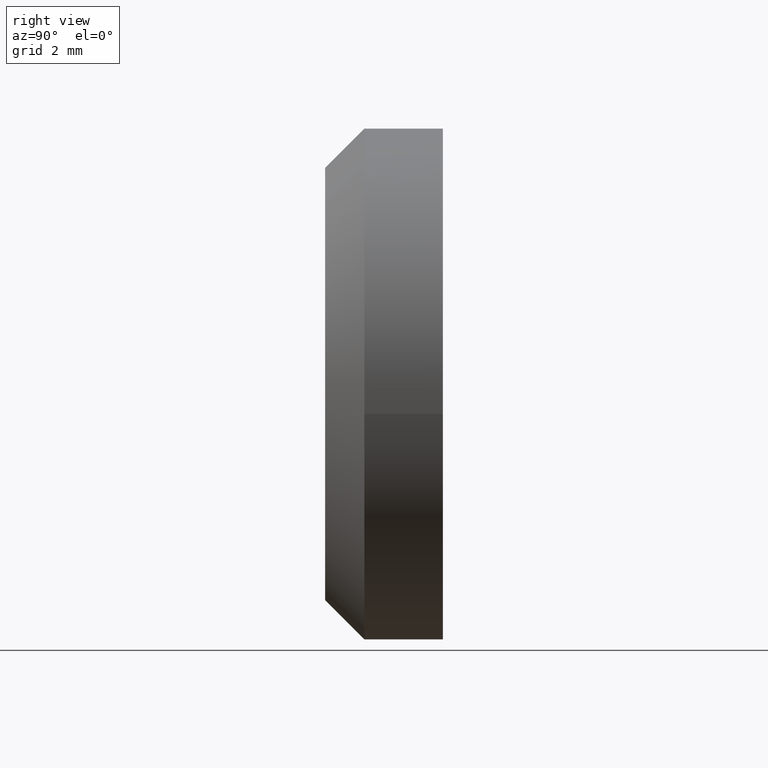
[diagram: clean part render]
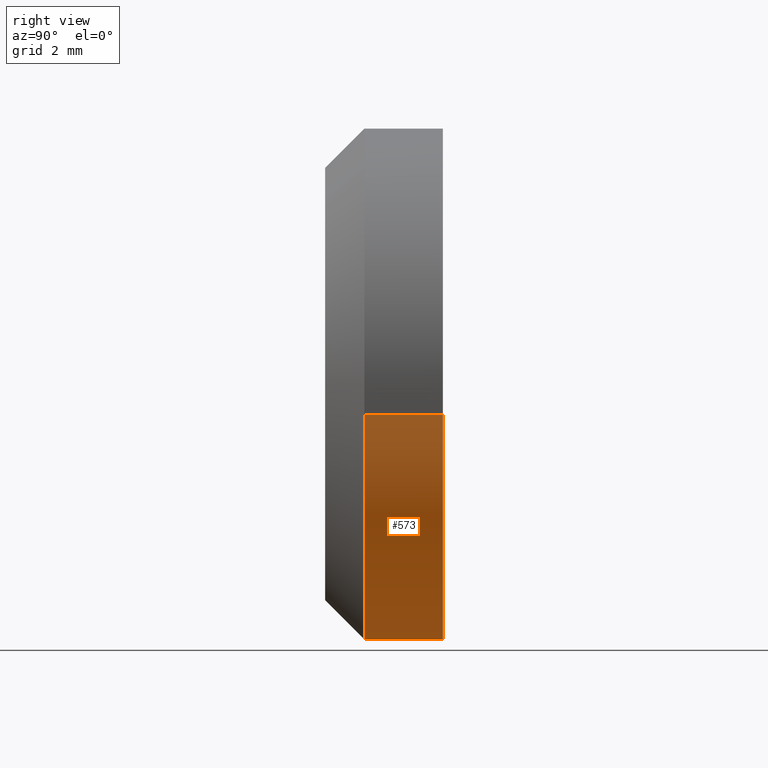
[diagram: same view with one face highlighted and labeled with its STEP entity id]
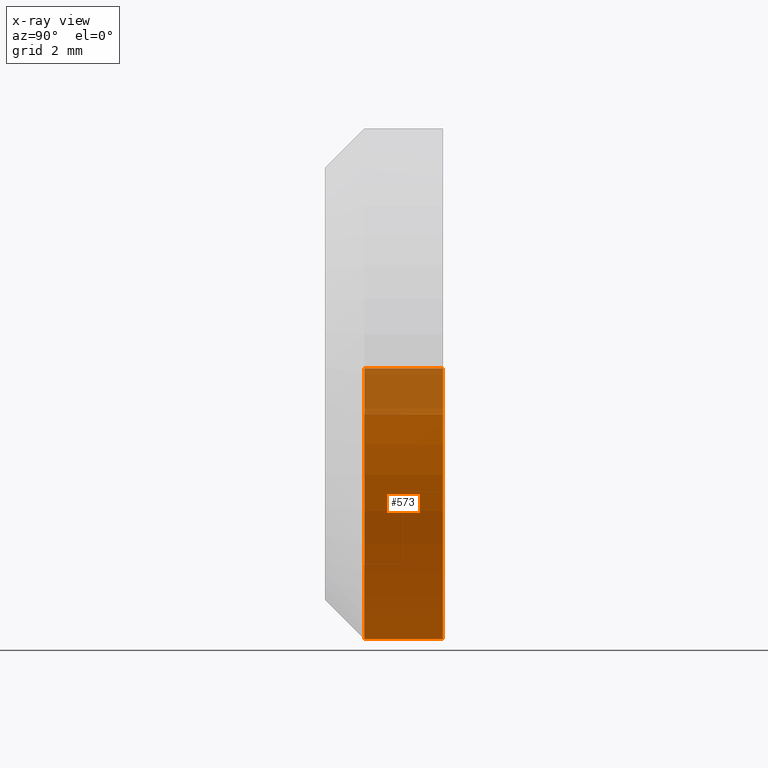
[diagram: x-ray of the same camera — body ghosted, the highlighted face saturated]
A machine part, right view. The second image highlights one B-rep face of the part: STEP entity #573.
The next image is the same camera in x-ray: the body ghosted, the highlighted face saturated — about 17% of this face is hidden behind the body in this view.
In plain terms, the highlighted face is a freeform B-spline surface patch.
Its self-contained STEP definition (entity closure, byte-faithful):
#252=CARTESIAN_POINT('',(6.454562409925407,-0.999999999999979,-0.767218415029761));
#253=VERTEX_POINT('',#252);
#319=CARTESIAN_POINT('',(-6.487876331741011,-0.999999999999986,0.396813185301808));
#320=VERTEX_POINT('',#319);
#334=CARTESIAN_POINT('',(4.898425E-016,-1.0,-6.500000000000000));
#335=VERTEX_POINT('',#334);
#336=CARTESIAN_POINT('',(-6.487876331741011,-0.999999999999986,0.396813185301808));
#337=CARTESIAN_POINT('',(-6.499999999999999,-1.0,0.198591797348603));
#338=CARTESIAN_POINT('',(-6.499999999999999,-1.0,0.0));
#339=CARTESIAN_POINT('',(-6.499999999999998,-1.0,-6.500000000000000));
#340=CARTESIAN_POINT('',(4.898425E-016,-1.0,-6.500000000000000));
#348=(BOUNDED_CURVE()B_SPLINE_CURVE(2,(#336,#337,#338,#339,#340),.UNSPECIFIED.,.F.,.U.)B_SPLINE_CURVE_WITH_KNOTS((3,2,3),(0.739333023987528,0.750000000000000,1.0),.UNSPECIFIED.)CURVE()GEOMETRIC_REPRESENTATION_ITEM()RATIONAL_B_SPLINE_CURVE((0.976072174005725,0.987502860242805,1.0,0.707106781186547,1.0))REPRESENTATION_ITEM(''));
#349=EDGE_CURVE('',#320,#335,#348,.T.);
#351=CARTESIAN_POINT('',(4.898425E-016,-1.0,-6.500000000000000));
#352=CARTESIAN_POINT('',(5.773138120873576,-1.0,-6.500000000000000));
#353=CARTESIAN_POINT('',(6.454562409925407,-0.999999999999979,-0.767218415029761));
#361=(BOUNDED_CURVE()B_SPLINE_CURVE(2,(#351,#352,#353),.UNSPECIFIED.,.F.,.U.)B_SPLINE_CURVE_WITH_KNOTS((3,3),(0.0,0.229562581136241),.UNSPECIFIED.)CURVE()GEOMETRIC_REPRESENTATION_ITEM()RATIONAL_B_SPLINE_CURVE((1.0,0.731050706767529,0.956026965128767))REPRESENTATION_ITEM(''));
#362=EDGE_CURVE('',#335,#253,#361,.T.);
#469=CARTESIAN_POINT('',(6.454562403899240,1.000000000000000,-0.767218465727815));
#470=VERTEX_POINT('',#469);
#471=CARTESIAN_POINT('',(6.454562403899240,1.000000000000000,-0.767218465727815));
#472=CARTESIAN_POINT('',(6.454562409925407,-0.999999999999979,-0.767218415029761));
#473=QUASI_UNIFORM_CURVE('',1,(#471,#472),.UNSPECIFIED.,.F.,.U.);
#474=EDGE_CURVE('',#470,#253,#473,.T.);
#493=CARTESIAN_POINT('',(-6.487876329990308,1.0,0.396813213925880));
#494=VERTEX_POINT('',#493);
#508=CARTESIAN_POINT('',(-6.487876329990308,1.0,0.396813213925880));
#509=CARTESIAN_POINT('',(-6.487876331741011,-0.999999999999986,0.396813185301808));
#510=QUASI_UNIFORM_CURVE('',1,(#508,#509),.UNSPECIFIED.,.F.,.U.);
#511=EDGE_CURVE('',#494,#320,#510,.T.);
#519=CARTESIAN_POINT('',(-6.487876189742132,1.050000000000000,0.396815506976570));
#520=CARTESIAN_POINT('',(-6.884691696718702,1.050000000000000,-6.091060682765563));
#521=CARTESIAN_POINT('',(-0.396815506976570,1.050000000000000,-6.487876189742133));
#522=CARTESIAN_POINT('',(5.730032690456757,1.050000000000000,-6.862610278761427));
#523=CARTESIAN_POINT('',(6.454561921363832,1.050000000000000,-0.767222525268930));
#524=CARTESIAN_POINT('',(-6.487876189742132,-1.051250000000000,0.396815506976570));
#525=CARTESIAN_POINT('',(-6.884691696718702,-1.051250000000000,-6.091060682765563));
#526=CARTESIAN_POINT('',(-0.396815506976570,-1.051250000000000,-6.487876189742133));
#527=CARTESIAN_POINT('',(5.730032690456757,-1.051250000000000,-6.862610278761427));
#528=CARTESIAN_POINT('',(6.454561921363832,-1.051250000000000,-0.767222525268930));
#536=(BOUNDED_SURFACE()B_SPLINE_SURFACE(2,1,((#519,#524),(#520,#525),(#521,#526),(#522,#527),(#523,#528)),.UNSPECIFIED.,.F.,.F.,.U.)B_SPLINE_SURFACE_WITH_KNOTS((3,2,3),(2,2),(0.0,10.769552621700470,21.108323138532910),(0.0,2.101250000000000),.UNSPECIFIED.)GEOMETRIC_REPRESENTATION_ITEM()RATIONAL_B_SPLINE_SURFACE(((1.0,1.0),(0.707106781186548,0.707106781186548),(1.0,1.0),(0.718822509939086,0.718822509939086),(0.977505800795127,0.977505800795127)))REPRESENTATION_ITEM('')SURFACE());
#537=ORIENTED_EDGE('',*,*,#362,.F.);
#538=ORIENTED_EDGE('',*,*,#349,.F.);
#539=ORIENTED_EDGE('',*,*,#511,.F.);
#540=CARTESIAN_POINT('',(4.898425E-016,1.0,-6.500000000000000));
#541=VERTEX_POINT('',#540);
#542=CARTESIAN_POINT('',(-6.487876329990309,1.0,0.396813213925880));
#543=CARTESIAN_POINT('',(-6.499999999999998,1.0,0.198591811700768));
#544=CARTESIAN_POINT('',(-6.499999999999999,1.0,0.0));
#545=CARTESIAN_POINT('',(-6.499999999999998,1.0,-6.500000000000000));
#546=CARTESIAN_POINT('',(4.898425E-016,1.0,-6.500000000000000));
#554=(BOUNDED_CURVE()B_SPLINE_CURVE(2,(#542,#543,#544,#545,#546),.UNSPECIFIED.,.F.,.U.)B_SPLINE_CURVE_WITH_KNOTS((3,2,3),(0.739333023226263,0.750000000000000,1.0),.UNSPECIFIED.)CURVE()GEOMETRIC_REPRESENTATION_ITEM()RATIONAL_B_SPLINE_CURVE((0.976072172374189,0.987502859350927,1.0,0.707106781186547,1.0))REPRESENTATION_ITEM(''));
#555=EDGE_CURVE('',#494,#541,#554,.T.);
#556=ORIENTED_EDGE('',*,*,#555,.T.);
#557=CARTESIAN_POINT('',(4.898425E-016,1.0,-6.500000000000000));
#558=CARTESIAN_POINT('',(5.773138075208631,1.0,-6.500000000000001));
#559=CARTESIAN_POINT('',(6.454562403899240,1.000000000000000,-0.767218465727815));
#567=(BOUNDED_CURVE()B_SPLINE_CURVE(2,(#557,#558,#559),.UNSPECIFIED.,.F.,.U.)B_SPLINE_CURVE_WITH_KNOTS((3,3),(0.0,0.229562579808786),.UNSPECIFIED.)CURVE()GEOMETRIC_REPRESENTATION_ITEM()RATIONAL_B_SPLINE_CURVE((1.0,0.731050708322738,0.956026962526900))REPRESENTATION_ITEM(''));
#568=EDGE_CURVE('',#541,#470,#567,.T.);
#569=ORIENTED_EDGE('',*,*,#568,.T.);
#570=ORIENTED_EDGE('',*,*,#474,.T.);
#571=EDGE_LOOP('',(#537,#538,#539,#556,#569,#570));
#572=FACE_OUTER_BOUND('',#571,.T.);
#573=ADVANCED_FACE('',(#572),#536,.T.);